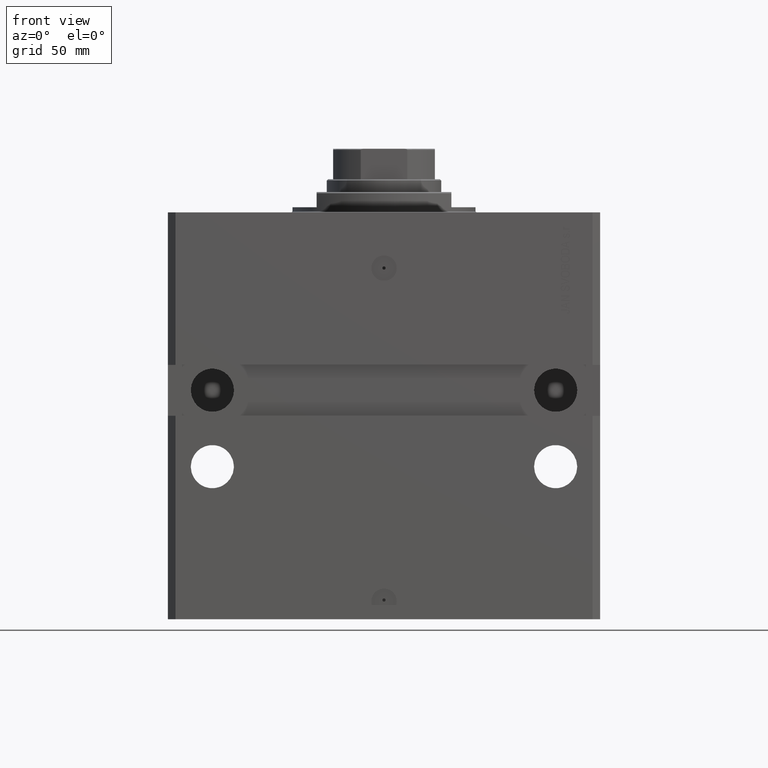
[diagram: clean part render]
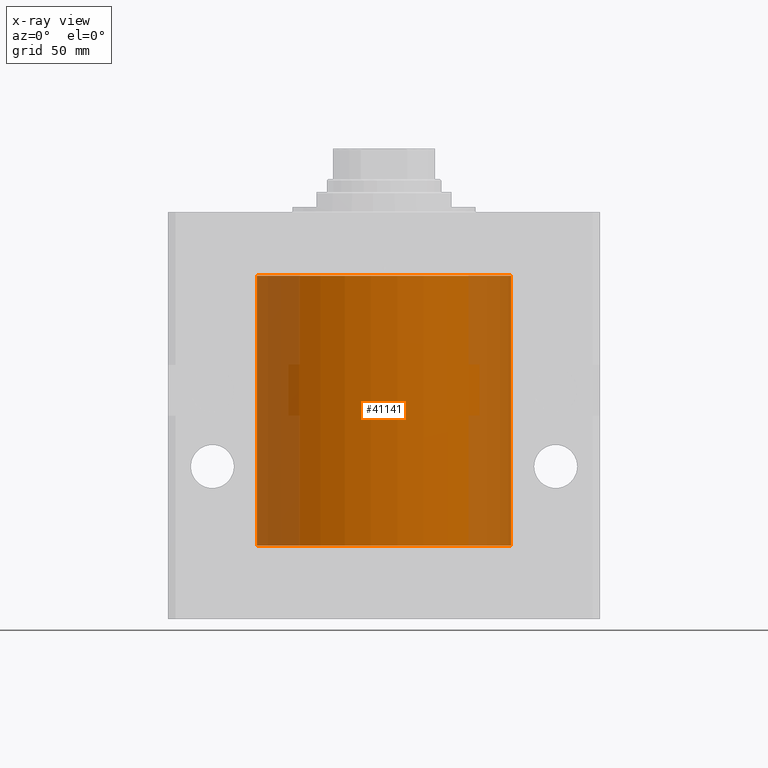
[diagram: x-ray — body ghosted, one internal face saturated and labeled with its STEP entity id]
A machine part, front view, then the same camera in x-ray: the body is ghosted and one INTERNAL B-rep face — a face not visible from any outside direction — is saturated and labeled: STEP entity #41141.
In plain terms, the highlighted cylindrical surface (partial cylindrical patch) has radius 50 mm, axis along (0, 0, 1).
Its self-contained STEP definition (entity closure, byte-faithful):
#180 = CARTESIAN_POINT ( 'NONE',  ( 0.000000000000000000, 0.000000000000000000, -131.0999999999999943 ) ) ;
#1422 = VERTEX_POINT ( 'NONE', #18919 ) ;
#3313 = EDGE_CURVE ( 'NONE', #27816, #1422, #45949, .T. ) ;
#6614 = DIRECTION ( 'NONE',  ( -0.000000000000000000, -0.000000000000000000, 1.000000000000000000 ) ) ;
#6774 = CARTESIAN_POINT ( 'NONE',  ( 0.000000000000000000, 0.000000000000000000, -24.99999999999999289 ) ) ;
#10372 = CARTESIAN_POINT ( 'NONE',  ( 50.00000000000000000, 0.000000000000000000, -24.99999999999999289 ) ) ;
#10471 = DIRECTION ( 'NONE',  ( -0.000000000000000000, -0.000000000000000000, 1.000000000000000000 ) ) ;
#10780 = EDGE_CURVE ( 'NONE', #1422, #31664, #38641, .T. ) ;
#13230 = VECTOR ( 'NONE', #6614, 1000.000000000000000 ) ;
#15575 = DIRECTION ( 'NONE',  ( 0.000000000000000000, 0.000000000000000000, 1.000000000000000000 ) ) ;
#15783 = CIRCLE ( 'NONE', #41881, 50.00000000000000000 ) ;
#17174 = ORIENTED_EDGE ( 'NONE', *, *, #10780, .F. ) ;
#17378 = CARTESIAN_POINT ( 'NONE',  ( 50.00000000000000000, 0.000000000000000000, -131.0999999999999943 ) ) ;
#18919 = CARTESIAN_POINT ( 'NONE',  ( 50.00000000000000000, 0.000000000000000000, -131.0999999999999943 ) ) ;
#19308 = ORIENTED_EDGE ( 'NONE', *, *, #3313, .F. ) ;
#19571 = CARTESIAN_POINT ( 'NONE',  ( -50.00000000000000000, 6.123233995736766085E-15, -131.0999999999999943 ) ) ;
#22150 = DIRECTION ( 'NONE',  ( -0.000000000000000000, -0.000000000000000000, 1.000000000000000000 ) ) ;
#23771 = CARTESIAN_POINT ( 'NONE',  ( -50.00000000000000000, 6.123233995736766085E-15, -131.0999999999999943 ) ) ;
#24444 = EDGE_CURVE ( 'NONE', #25165, #31664, #15783, .T. ) ;
#25165 = VERTEX_POINT ( 'NONE', #43804 ) ;
#26555 = DIRECTION ( 'NONE',  ( 1.000000000000000000, 0.000000000000000000, 0.000000000000000000 ) ) ;
#27816 = VERTEX_POINT ( 'NONE', #23771 ) ;
#28014 = CYLINDRICAL_SURFACE ( 'NONE', #42632, 50.00000000000000000 ) ;
#28718 = DIRECTION ( 'NONE',  ( 1.000000000000000000, 0.000000000000000000, 0.000000000000000000 ) ) ;
#29799 = ORIENTED_EDGE ( 'NONE', *, *, #41365, .T. ) ;
#30705 = EDGE_LOOP ( 'NONE', ( #19308, #29799, #32838, #17174 ) ) ;
#31065 = AXIS2_PLACEMENT_3D ( 'NONE', #36847, #15575, #26555 ) ;
#31664 = VERTEX_POINT ( 'NONE', #10372 ) ;
#32838 = ORIENTED_EDGE ( 'NONE', *, *, #24444, .T. ) ;
#34829 = DIRECTION ( 'NONE',  ( 1.000000000000000000, 0.000000000000000000, 0.000000000000000000 ) ) ;
#36699 = VECTOR ( 'NONE', #22150, 1000.000000000000000 ) ;
#36847 = CARTESIAN_POINT ( 'NONE',  ( 0.000000000000000000, 0.000000000000000000, -131.0999999999999943 ) ) ;
#38641 = LINE ( 'NONE', #17378, #13230 ) ;
#40141 = LINE ( 'NONE', #19571, #36699 ) ;
#41141 = ADVANCED_FACE ( 'NONE', ( #42262 ), #28014, .F. ) ;
#41365 = EDGE_CURVE ( 'NONE', #27816, #25165, #40141, .T. ) ;
#41881 = AXIS2_PLACEMENT_3D ( 'NONE', #6774, #45112, #34829 ) ;
#42262 = FACE_OUTER_BOUND ( 'NONE', #30705, .T. ) ;
#42632 = AXIS2_PLACEMENT_3D ( 'NONE', #180, #10471, #28718 ) ;
#43804 = CARTESIAN_POINT ( 'NONE',  ( -50.00000000000000000, 6.123233995736766085E-15, -24.99999999999999289 ) ) ;
#45112 = DIRECTION ( 'NONE',  ( 0.000000000000000000, 0.000000000000000000, 1.000000000000000000 ) ) ;
#45949 = CIRCLE ( 'NONE', #31065, 50.00000000000000000 ) ;